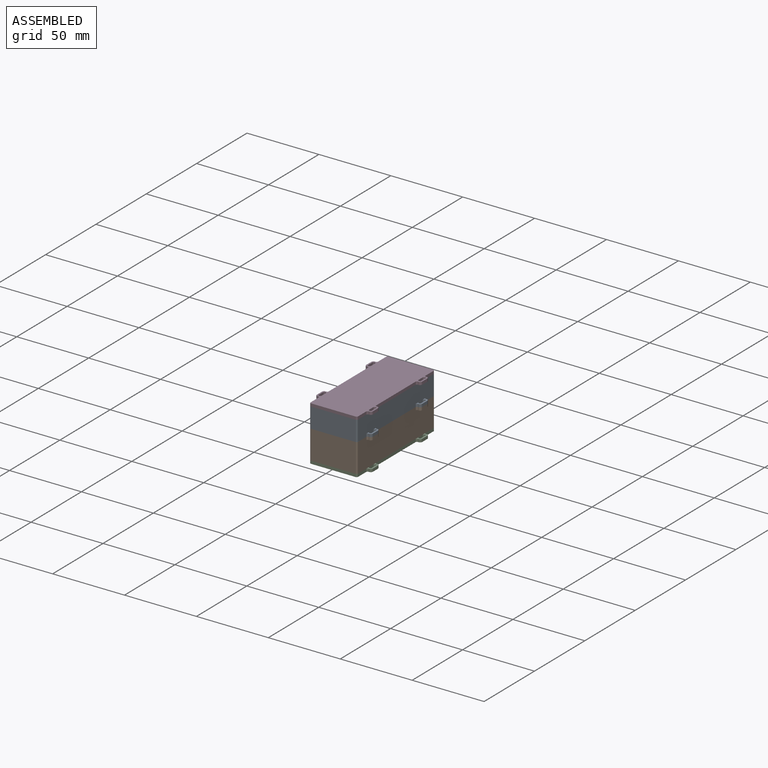
[diagram: assembled view]
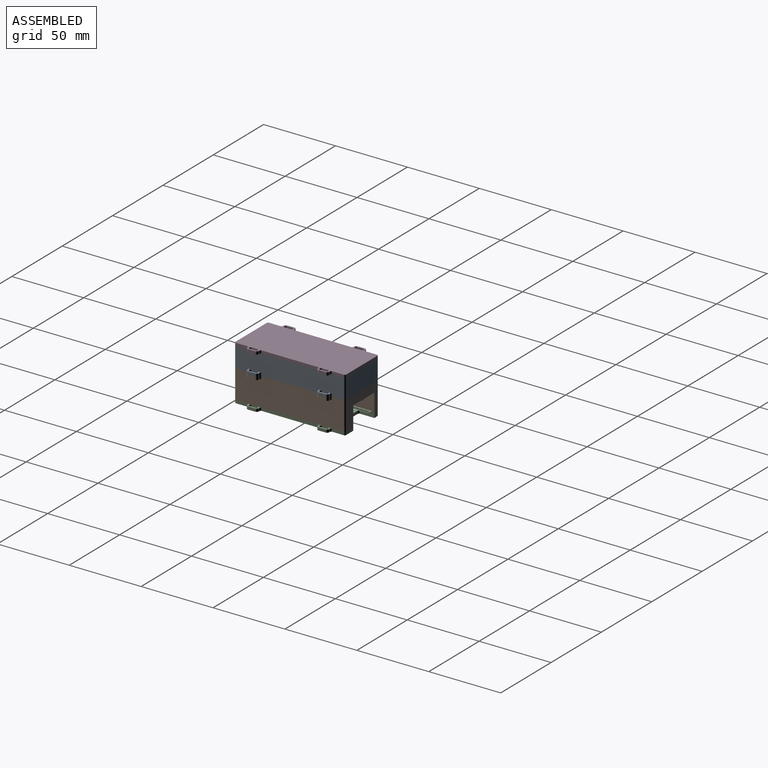
[diagram: assembled view, second angle]
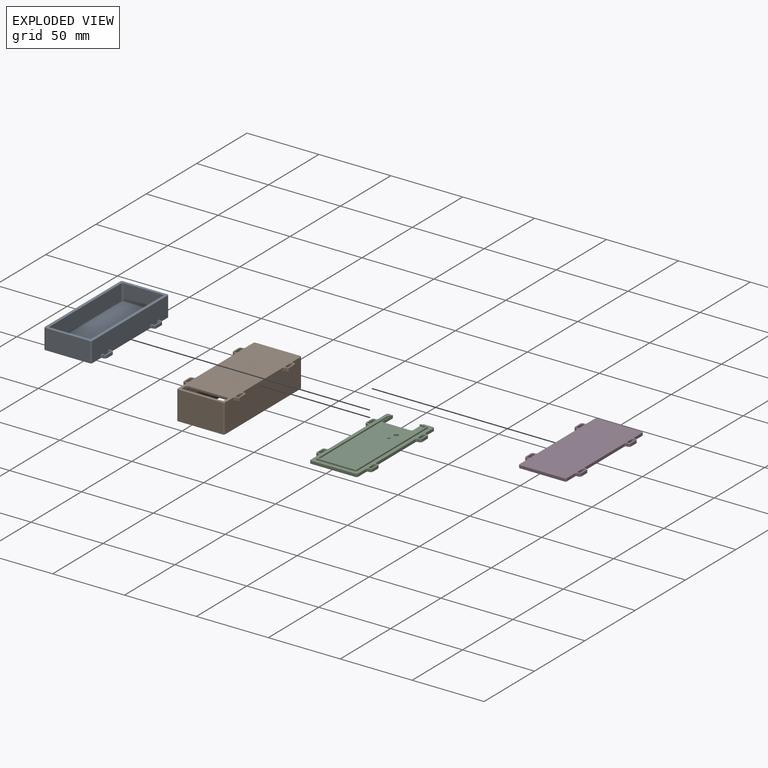
[diagram: exploded view]
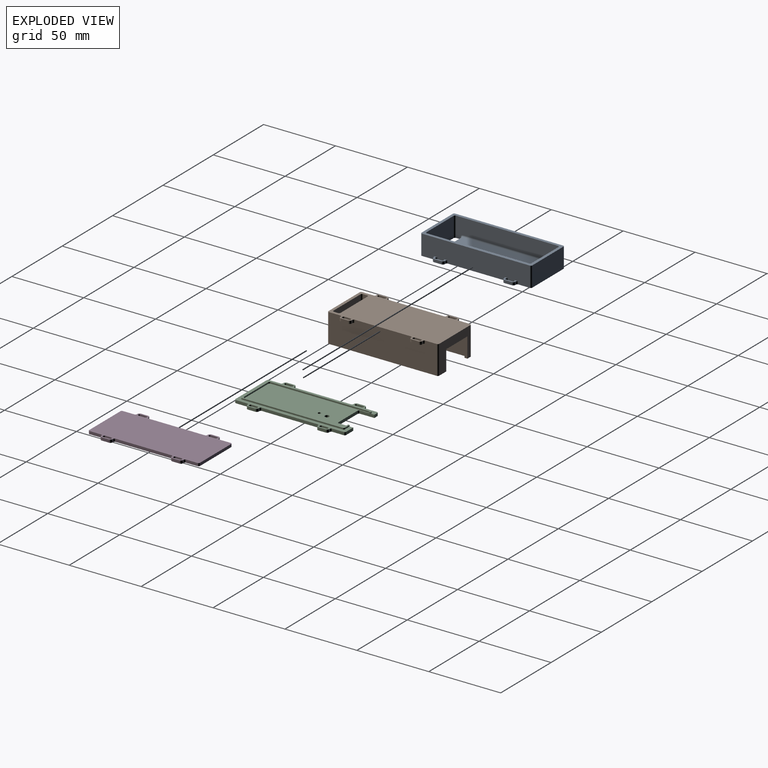
[diagram: exploded view, second angle]
ASSEMBLY  parts=4 mates=9
PART A: 90 faces, bbox 39x77x14 mm
  f0: plane 75x14mm, normal (1,0,0), area 1026mm2, adj f2,f5,f26,f29,f51,f73,f74,f75
  f1: plane 75x14mm, normal (-1,0,0), area 1026mm2, adj f2,f5,f27,f28,f34,f52,f78,f79
  f2: plane 77x33mm, normal (0,0,1), area 424mm2, adj f0,f1,f3,f4,f6,f7,f8,f9
  f3: plane 31x14mm, normal (0,1,0), area 434mm2, adj f2,f5,f26,f27
  f4: plane 31x14mm, normal (0,-1,0), area 434mm2, adj f2,f5,f28,f29
  f5: plane 77x39mm, normal (0,0,-1), area 2444mm2, adj f0,f1,f3,f4,f6,f7,f8,f11
  f6: plane 71x14mm, normal (-1,0,0), area 790.9mm2, adj f2,f5,f12,f13,f14,f22,f25
  f7: plane 27x14mm, normal (0,-1,0), area 378mm2, adj f2,f5,f24,f25
  f8: plane 71x14mm, normal (1,0,0), area 790.9mm2, adj f2,f5,f17,f18,f19,f20,f24
  f9: plane 27x11mm, normal (0,1,0), area 297mm2, adj f2,f15,f20,f22
  f10: plane 66x27mm, normal (0,0,1), area 1782mm2, adj f13,f15,f16,f17
  f11: plane 27x1mm, normal (0,1,0), area 27mm2, adj f5,f12,f16,f19
  f12: cylinder r=1mm len=1mm, axis (0,0,-1), area 1.6mm2, adj f5,f6,f11,f14
  f13: cylinder r=1mm len=66mm, axis (0,-1,0), area 103.7mm2, adj f6,f10,f14,f23
  f14: torus R=2mm, axis (1,0,0), area 3.4mm2, adj f6,f12,f13,f16
  f15: cylinder r=1mm len=27mm, axis (-1,0,0), area 42.4mm2, adj f9,f10,f21,f23
  f16: cylinder r=1mm len=27mm, axis (-1,0,0), area 42.4mm2, adj f10,f11,f14,f18
  f17: cylinder r=1mm len=66mm, axis (0,1,0), area 103.7mm2, adj f8,f10,f18,f21
  f18: torus R=2mm, axis (1,0,0), area 3.4mm2, adj f8,f16,f17,f19
  f19: cylinder r=1mm len=1mm, axis (0,0,1), area 1.6mm2, adj f5,f8,f11,f18
  f20: cylinder r=1mm len=11mm, axis (0,0,-1), area 17.3mm2, adj f2,f8,f9,f21
  f21: sphere r=1mm, area 1.6mm2, adj f15,f17,f20
  f22: cylinder r=1mm len=11mm, axis (0,0,1), area 17.3mm2, adj f2,f6,f9,f23
  f23: sphere r=1mm, area 1.6mm2, adj f13,f15,f22
  f24: cylinder r=1mm len=14mm, axis (0,0,1), area 22mm2, adj f2,f5,f7,f8
  f25: cylinder r=1mm len=14mm, axis (0,0,-1), area 22mm2, adj f2,f5,f6,f7
  f26: cylinder r=1mm len=14mm, axis (0,0,1), area 22mm2, adj f0,f2,f3,f5
  f27: cylinder r=1mm len=14mm, axis (0,0,-1), area 22mm2, adj f1,f2,f3,f5
  f28: cylinder r=1mm len=14mm, axis (0,0,1), area 22mm2, adj f1,f2,f4,f5
  f29: cylinder r=1mm len=14mm, axis (0,0,-1), area 22mm2, adj f0,f2,f4,f5
  f30: plane 2x0.5mm, normal (0,-1,0), area 1mm2, adj f5,f34,f35,f86
  f31: plane 2x0.5mm, normal (0,-1,0), area 1mm2, adj f5,f34,f38,f88
  f32: plane 2x0.5mm, normal (0,1,0), area 1mm2, adj f5,f34,f40,f87
  f33: plane 2x0.5mm, normal (0,1,0), area 1mm2, adj f5,f34,f37,f89
  f34: plane 10x3mm, normal (0,0,1), area 12mm2, adj f1,f30,f31,f32,f33,f35,f36,f37
  f35: cylinder r=1.5mm len=2mm, axis (0,0,-1), area 4.7mm2, adj f5,f30,f34,f36
  f36: plane 5x2mm, normal (-1,0,0), area 10mm2, adj f5,f34,f35,f37
  f37: cylinder r=1.5mm len=2mm, axis (0,0,-1), area 4.7mm2, adj f5,f33,f34,f36
  f38: cylinder r=0.5mm len=2mm, axis (0,0,-1), area 1.6mm2, adj f5,f31,f34,f39
  f39: plane 5x2mm, normal (1,0,0), area 10mm2, adj f5,f34,f38,f40
  f40: cylinder r=0.5mm len=2mm, axis (0,0,-1), area 1.6mm2, adj f5,f32,f34,f39
  f41: plane 2x0.5mm, normal (0,1,0), area 1mm2, adj f5,f42,f51,f84
  f42: cylinder r=1.5mm len=2mm, axis (0,0,-1), area 4.7mm2, adj f5,f41,f43,f51
  f43: plane 5x2mm, normal (1,0,0), area 10mm2, adj f5,f42,f44,f51
  f44: cylinder r=1.5mm len=2mm, axis (0,0,-1), area 4.7mm2, adj f5,f43,f50,f51
  f45: plane 2x0.5mm, normal (0,-1,0), area 1mm2, adj f5,f49,f51,f85
  f46: plane 2x0.5mm, normal (0,1,0), area 1mm2, adj f5,f47,f51,f82
  f47: cylinder r=0.5mm len=2mm, axis (0,0,-1), area 1.6mm2, adj f5,f46,f48,f51
  f48: plane 5x2mm, normal (-1,0,0), area 10mm2, adj f5,f47,f49,f51
  f49: cylinder r=0.5mm len=2mm, axis (0,0,-1), area 1.6mm2, adj f5,f45,f48,f51
  f50: plane 2x0.5mm, normal (0,-1,0), area 1mm2, adj f5,f44,f51,f83
  f51: plane 10x3mm, normal (0,0,1), area 12mm2, adj f0,f41,f42,f43,f44,f45,f46,f47
  f52: plane 10x3mm, normal (0,0,1), area 12mm2, adj f1,f53,f54,f55,f56,f57,f58,f59
  f53: plane 2x0.5mm, normal (0,1,0), area 1mm2, adj f5,f52,f62,f78
  f54: plane 2x0.5mm, normal (0,-1,0), area 1mm2, adj f5,f52,f57,f79
  f55: plane 2x0.5mm, normal (0,-1,0), area 1mm2, adj f5,f52,f59,f80
  f56: plane 2x0.5mm, normal (0,1,0), area 1mm2, adj f5,f52,f61,f81
  f57: cylinder r=1.5mm len=2mm, axis (0,0,-1), area 4.7mm2, adj f5,f52,f54,f58
  f58: plane 5x2mm, normal (-1,0,0), area 10mm2, adj f5,f52,f57,f62
  f59: cylinder r=0.5mm len=2mm, axis (0,0,-1), area 1.6mm2, adj f5,f52,f55,f60
  f60: plane 5x2mm, normal (1,0,0), area 10mm2, adj f5,f52,f59,f61
  f61: cylinder r=0.5mm len=2mm, axis (0,0,-1), area 1.6mm2, adj f5,f52,f56,f60
  f62: cylinder r=1.5mm len=2mm, axis (0,0,-1), area 4.7mm2, adj f5,f52,f53,f58
  f63: plane 2x0.5mm, normal (0,1,0), area 1mm2, adj f5,f64,f73,f74
  f64: cylinder r=1.5mm len=2mm, axis (0,0,-1), area 4.7mm2, adj f5,f63,f65,f73
  f65: plane 5x2mm, normal (1,0,0), area 10mm2, adj f5,f64,f66,f73
  f66: cylinder r=1.5mm len=2mm, axis (0,0,-1), area 4.7mm2, adj f5,f65,f67,f73
  f67: plane 2x0.5mm, normal (0,-1,0), area 1mm2, adj f5,f66,f73,f75
  f68: plane 2x0.5mm, normal (0,-1,0), area 1mm2, adj f5,f72,f73,f76
  f69: plane 2x0.5mm, normal (0,1,0), area 1mm2, adj f5,f70,f73,f77
  f70: cylinder r=0.5mm len=2mm, axis (0,0,-1), area 1.6mm2, adj f5,f69,f71,f73
  f71: plane 5x2mm, normal (-1,0,0), area 10mm2, adj f5,f70,f72,f73
  f72: cylinder r=0.5mm len=2mm, axis (0,0,-1), area 1.6mm2, adj f5,f68,f71,f73
  f73: plane 10x3mm, normal (0,0,1), area 12mm2, adj f0,f63,f64,f65,f66,f67,f68,f69
  f74: cylinder r=1mm len=2mm, axis (0,0,-1), area 3.1mm2, adj f0,f5,f63,f73
  f75: cylinder r=1mm len=2mm, axis (0,0,1), area 3.1mm2, adj f0,f5,f67,f73
  f76: cylinder r=1mm len=2mm, axis (0,0,1), area 3.1mm2, adj f0,f5,f68,f73
  f77: cylinder r=1mm len=2mm, axis (0,0,-1), area 3.1mm2, adj f0,f5,f69,f73
  f78: cylinder r=1mm len=2mm, axis (0,0,1), area 3.1mm2, adj f1,f5,f52,f53
  f79: cylinder r=1mm len=2mm, axis (0,0,-1), area 3.1mm2, adj f1,f5,f52,f54
  f80: cylinder r=1mm len=2mm, axis (0,0,-1), area 3.1mm2, adj f1,f5,f52,f55
  f81: cylinder r=1mm len=2mm, axis (0,0,1), area 3.1mm2, adj f1,f5,f52,f56
  f82: cylinder r=1mm len=2mm, axis (0,0,-1), area 3.1mm2, adj f0,f5,f46,f51
  f83: cylinder r=1mm len=2mm, axis (0,0,1), area 3.1mm2, adj f0,f5,f50,f51
  f84: cylinder r=1mm len=2mm, axis (0,0,-1), area 3.1mm2, adj f0,f5,f41,f51
  f85: cylinder r=1mm len=2mm, axis (0,0,1), area 3.1mm2, adj f0,f5,f45,f51
  f86: cylinder r=1mm len=2mm, axis (0,0,-1), area 3.1mm2, adj f1,f5,f30,f34
  f87: cylinder r=1mm len=2mm, axis (0,0,1), area 3.1mm2, adj f1,f5,f32,f34
  f88: cylinder r=1mm len=2mm, axis (0,0,-1), area 3.1mm2, adj f1,f5,f31,f34
  f89: cylinder r=1mm len=2mm, axis (0,0,1), area 3.1mm2, adj f1,f5,f33,f34
PART B: 93 faces, bbox 39x77x20 mm
  f0: plane 75x20mm, normal (1,0,0), area 1476mm2, adj f3,f4,f36,f58,f73,f76,f77,f78
  f1: plane 75x20mm, normal (-1,0,0), area 1476mm2, adj f3,f4,f19,f37,f74,f75,f81,f82
  f2: plane 66x27mm, normal (0,0,1), area 1782mm2, adj f62,f63,f67,f68
  f3: plane 77x39mm, normal (0,0,-1), area 2444mm2, adj f0,f1,f5,f6,f7,f8,f9,f14
  f4: plane 77x33mm, normal (0,0,1), area 382mm2, adj f0,f1,f5,f6,f7,f8,f9,f10
  f5: plane 31x20mm, normal (0,1,0), area 620mm2, adj f3,f4,f73,f74
  f6: plane 31x20mm, normal (0,-1,0), area 326mm2, adj f3,f4,f11,f12,f13,f75,f76
  f7: plane 71x20mm, normal (-1,0,0), area 1216.9mm2, adj f3,f4,f61,f67,f69,f70,f72
  f8: plane 27x20mm, normal (0,-1,0), area 540mm2, adj f3,f4,f71,f72
  f9: plane 71x20mm, normal (1,0,0), area 1216.9mm2, adj f3,f4,f59,f63,f64,f66,f71
  f10: plane 27x17mm, normal (0,1,0), area 165mm2, adj f4,f11,f12,f13,f59,f61,f62
  f11: plane 14x2mm, normal (1,0,0), area 28mm2, adj f4,f6,f10,f12
  f12: plane 21x2mm, normal (0,0,1), area 42mm2, adj f6,f10,f11,f13
  f13: plane 14x2mm, normal (-1,0,0), area 28mm2, adj f4,f6,f10,f12
  f14: plane 27x1mm, normal (0,1,0), area 27mm2, adj f3,f64,f68,f70
  f15: plane 2x0.5mm, normal (0,-1,0), area 1mm2, adj f3,f19,f20,f89
  f16: plane 2x0.5mm, normal (0,-1,0), area 1mm2, adj f3,f19,f23,f91
  f17: plane 2x0.5mm, normal (0,1,0), area 1mm2, adj f3,f19,f25,f90
  f18: plane 2x0.5mm, normal (0,1,0), area 1mm2, adj f3,f19,f22,f92
  f19: plane 10x3mm, normal (0,0,1), area 12mm2, adj f1,f15,f16,f17,f18,f20,f21,f22
  f20: cylinder r=1.5mm len=2mm, axis (0,0,-1), area 4.7mm2, adj f3,f15,f19,f21
  f21: plane 5x2mm, normal (-1,0,0), area 10mm2, adj f3,f19,f20,f22
  f22: cylinder r=1.5mm len=2mm, axis (0,0,-1), area 4.7mm2, adj f3,f18,f19,f21
  f23: cylinder r=0.5mm len=2mm, axis (0,0,-1), area 1.6mm2, adj f3,f16,f19,f24
  f24: plane 5x2mm, normal (1,0,0), area 10mm2, adj f3,f19,f23,f25
  f25: cylinder r=0.5mm len=2mm, axis (0,0,-1), area 1.6mm2, adj f3,f17,f19,f24
  f26: plane 2x0.5mm, normal (0,1,0), area 1mm2, adj f3,f27,f36,f87
  f27: cylinder r=1.5mm len=2mm, axis (0,0,-1), area 4.7mm2, adj f3,f26,f28,f36
  f28: plane 5x2mm, normal (1,0,0), area 10mm2, adj f3,f27,f29,f36
  f29: cylinder r=1.5mm len=2mm, axis (0,0,-1), area 4.7mm2, adj f3,f28,f35,f36
  f30: plane 2x0.5mm, normal (0,-1,0), area 1mm2, adj f3,f34,f36,f88
  f31: plane 2x0.5mm, normal (0,1,0), area 1mm2, adj f3,f32,f36,f85
  f32: cylinder r=0.5mm len=2mm, axis (0,0,-1), area 1.6mm2, adj f3,f31,f33,f36
  f33: plane 5x2mm, normal (-1,0,0), area 10mm2, adj f3,f32,f34,f36
  f34: cylinder r=0.5mm len=2mm, axis (0,0,-1), area 1.6mm2, adj f3,f30,f33,f36
  f35: plane 2x0.5mm, normal (0,-1,0), area 1mm2, adj f3,f29,f36,f86
  f36: plane 10x3mm, normal (0,0,1), area 12mm2, adj f0,f26,f27,f28,f29,f30,f31,f32
  f37: plane 10x3mm, normal (0,0,1), area 12mm2, adj f1,f38,f39,f40,f41,f42,f43,f44
  f38: plane 2x0.5mm, normal (0,1,0), area 1mm2, adj f3,f37,f47,f81
  f39: plane 2x0.5mm, normal (0,-1,0), area 1mm2, adj f3,f37,f42,f82
  f40: plane 2x0.5mm, normal (0,-1,0), area 1mm2, adj f3,f37,f44,f83
  f41: plane 2x0.5mm, normal (0,1,0), area 1mm2, adj f3,f37,f46,f84
  f42: cylinder r=0.5mm len=2mm, axis (0,0,-1), area 1.6mm2, adj f3,f37,f39,f43
  f43: plane 5x2mm, normal (1,0,0), area 10mm2, adj f3,f37,f42,f47
  f44: cylinder r=1.5mm len=2mm, axis (0,0,-1), area 4.7mm2, adj f3,f37,f40,f45
  f45: plane 5x2mm, normal (-1,0,0), area 10mm2, adj f3,f37,f44,f46
  f46: cylinder r=1.5mm len=2mm, axis (0,0,-1), area 4.7mm2, adj f3,f37,f41,f45
  f47: cylinder r=0.5mm len=2mm, axis (0,0,-1), area 1.6mm2, adj f3,f37,f38,f43
  f48: plane 2x0.5mm, normal (0,1,0), area 1mm2, adj f3,f49,f58,f77
  f49: cylinder r=1.5mm len=2mm, axis (0,0,-1), area 4.7mm2, adj f3,f48,f50,f58
  f50: plane 5x2mm, normal (1,0,0), area 10mm2, adj f3,f49,f51,f58
  f51: cylinder r=1.5mm len=2mm, axis (0,0,-1), area 4.7mm2, adj f3,f50,f52,f58
  f52: plane 2x0.5mm, normal (0,-1,0), area 1mm2, adj f3,f51,f58,f78
  f53: plane 2x0.5mm, normal (0,-1,0), area 1mm2, adj f3,f57,f58,f79
  f54: plane 2x0.5mm, normal (0,1,0), area 1mm2, adj f3,f55,f58,f80
  f55: cylinder r=0.5mm len=2mm, axis (0,0,-1), area 1.6mm2, adj f3,f54,f56,f58
  f56: plane 5x2mm, normal (-1,0,0), area 10mm2, adj f3,f55,f57,f58
  f57: cylinder r=0.5mm len=2mm, axis (0,0,-1), area 1.6mm2, adj f3,f53,f56,f58
  f58: plane 10x3mm, normal (0,0,1), area 12mm2, adj f0,f48,f49,f50,f51,f52,f53,f54
  f59: cylinder r=1mm len=17mm, axis (0,0,-1), area 26.7mm2, adj f4,f9,f10,f60
  f60: sphere r=1mm, area 1.6mm2, adj f59,f62,f63
  f61: cylinder r=1mm len=17mm, axis (0,0,1), area 26.7mm2, adj f4,f7,f10,f65
  f62: cylinder r=1mm len=27mm, axis (-1,0,0), area 42.4mm2, adj f2,f10,f60,f65
  f63: cylinder r=1mm len=66mm, axis (0,1,0), area 103.7mm2, adj f2,f9,f60,f66
  f64: cylinder r=1mm len=1mm, axis (0,0,-1), area 1.6mm2, adj f3,f9,f14,f66
  f65: sphere r=1mm, area 1.6mm2, adj f61,f62,f67
  f66: torus R=2mm, axis (1,0,0), area 3.4mm2, adj f9,f63,f64,f68
  f67: cylinder r=1mm len=66mm, axis (0,-1,0), area 103.7mm2, adj f2,f7,f65,f69
  f68: cylinder r=1mm len=27mm, axis (-1,0,0), area 42.4mm2, adj f2,f14,f66,f69
  f69: torus R=2mm, axis (1,0,0), area 3.4mm2, adj f7,f67,f68,f70
  f70: cylinder r=1mm len=1mm, axis (0,0,1), area 1.6mm2, adj f3,f7,f14,f69
  f71: cylinder r=1mm len=20mm, axis (0,0,1), area 31.4mm2, adj f3,f4,f8,f9
  f72: cylinder r=1mm len=20mm, axis (0,0,-1), area 31.4mm2, adj f3,f4,f7,f8
  f73: cylinder r=1mm len=20mm, axis (0,0,1), area 31.4mm2, adj f0,f3,f4,f5
  f74: cylinder r=1mm len=20mm, axis (0,0,-1), area 31.4mm2, adj f1,f3,f4,f5
  f75: cylinder r=1mm len=20mm, axis (0,0,1), area 31.4mm2, adj f1,f3,f4,f6
  f76: cylinder r=1mm len=20mm, axis (0,0,-1), area 31.4mm2, adj f0,f3,f4,f6
  f77: cylinder r=1mm len=2mm, axis (0,0,-1), area 3.1mm2, adj f0,f3,f48,f58
  f78: cylinder r=1mm len=2mm, axis (0,0,1), area 3.1mm2, adj f0,f3,f52,f58
  f79: cylinder r=1mm len=2mm, axis (0,0,1), area 3.1mm2, adj f0,f3,f53,f58
  f80: cylinder r=1mm len=2mm, axis (0,0,-1), area 3.1mm2, adj f0,f3,f54,f58
  f81: cylinder r=1mm len=2mm, axis (0,0,1), area 3.1mm2, adj f1,f3,f37,f38
  f82: cylinder r=1mm len=2mm, axis (0,0,-1), area 3.1mm2, adj f1,f3,f37,f39
  f83: cylinder r=1mm len=2mm, axis (0,0,-1), area 3.1mm2, adj f1,f3,f37,f40
  f84: cylinder r=1mm len=2mm, axis (0,0,1), area 3.1mm2, adj f1,f3,f37,f41
  f85: cylinder r=1mm len=2mm, axis (0,0,-1), area 3.1mm2, adj f0,f3,f31,f36
  f86: cylinder r=1mm len=2mm, axis (0,0,1), area 3.1mm2, adj f0,f3,f35,f36
  f87: cylinder r=1mm len=2mm, axis (0,0,-1), area 3.1mm2, adj f0,f3,f26,f36
  f88: cylinder r=1mm len=2mm, axis (0,0,1), area 3.1mm2, adj f0,f3,f30,f36
  f89: cylinder r=1mm len=2mm, axis (0,0,-1), area 3.1mm2, adj f1,f3,f15,f19
  f90: cylinder r=1mm len=2mm, axis (0,0,1), area 3.1mm2, adj f1,f3,f17,f19
  f91: cylinder r=1mm len=2mm, axis (0,0,-1), area 3.1mm2, adj f1,f3,f16,f19
  f92: cylinder r=1mm len=2mm, axis (0,0,1), area 3.1mm2, adj f1,f3,f18,f19
PART C: 101 faces, bbox 39x77x3 mm
  f0: plane 77x39mm, normal (0,0,-1), area 520.5mm2, adj f1,f3,f7,f8,f9,f10,f11,f12
  f1: plane 7x2mm, normal (0,-1,0), area 14mm2, adj f0,f2,f34,f97
  f2: plane 77x39mm, normal (0,0,1), area 2347.4mm2, adj f1,f7,f8,f9,f10,f11,f12,f13
  f3: plane 4.5x1mm, normal (0,-1,0), area 4.5mm2, adj f0,f5,f33,f97
  f4: plane 3.5x1mm, normal (0,1,0), area 3.5mm2, adj f5,f6,f26,f97
  f5: plane 72x28mm, normal (0,0,-1), area 175mm2, adj f3,f4,f19,f20,f21,f22,f23,f24
  f6: plane 70x26mm, normal (0,0,-1), area 1651.9mm2, adj f4,f26,f27,f28,f29,f30,f31,f32
  f7: plane 4x2mm, normal (1,0,0), area 8mm2, adj f0,f2,f78,f79
  f8: plane 8x2mm, normal (1,0,0), area 16mm2, adj f0,f2,f34,f81
  f9: plane 39x2mm, normal (-1,0,0), area 78mm2, adj f0,f2,f83,f93
  f10: plane 4x2mm, normal (-1,0,0), area 8mm2, adj f0,f2,f84,f85
  f11: plane 39x2mm, normal (1,0,0), area 78mm2, adj f0,f2,f80,f86
  f12: plane 4x2mm, normal (1,0,0), area 8mm2, adj f0,f2,f87,f88
  f13: plane 8x2mm, normal (-1,0,0), area 16mm2, adj f0,f2,f36,f90
  f14: plane 4x2mm, normal (-1,0,0), area 8mm2, adj f0,f2,f91,f92
  f15: plane 3x2mm, normal (0,-1,0), area 6mm2, adj f0,f2,f37,f98
  f16: plane 8x2mm, normal (1,0,0), area 16mm2, adj f0,f2,f35,f89
  f17: plane 31x2mm, normal (0,1,0), area 62mm2, adj f0,f2,f35,f36
  f18: plane 8x2mm, normal (-1,0,0), area 16mm2, adj f0,f2,f37,f82
  f19: plane 70x1mm, normal (1,0,0), area 70mm2, adj f0,f5,f20,f33
  f20: cylinder r=1mm len=1mm, axis (0,0,1), area 1.6mm2, adj f0,f5,f19,f21
  f21: plane 26x1mm, normal (0,1,0), area 26mm2, adj f0,f5,f20,f22
  f22: cylinder r=1mm len=1mm, axis (0,0,1), area 1.6mm2, adj f0,f5,f21,f23
  f23: plane 70x1mm, normal (-1,0,0), area 70mm2, adj f0,f5,f22,f24
  f24: cylinder r=1mm len=1mm, axis (0,0,1), area 1.6mm2, adj f0,f5,f23,f25
  f25: plane 1x0.5mm, normal (0,-1,0), area 0.5mm2, adj f0,f5,f24,f98
  f26: cylinder r=1mm len=1mm, axis (0,0,1), area 1.6mm2, adj f4,f5,f6,f32
  f27: cylinder r=1mm len=1mm, axis (0,0,1), area 1mm2, adj f5,f6,f28,f98
  f28: plane 68x1mm, normal (1,0,0), area 68mm2, adj f5,f6,f27,f29
  f29: cylinder r=1mm len=1mm, axis (0,0,1), area 1.6mm2, adj f5,f6,f28,f30
  f30: plane 24x1mm, normal (0,-1,0), area 24mm2, adj f5,f6,f29,f31
  f31: cylinder r=1mm len=1mm, axis (0,0,1), area 1.6mm2, adj f5,f6,f30,f32
  f32: plane 68x1mm, normal (-1,0,0), area 68mm2, adj f5,f6,f26,f31
  f33: cylinder r=1mm len=1mm, axis (0,0,1), area 1.6mm2, adj f0,f3,f5,f19
  f34: cylinder r=1mm len=2mm, axis (0,0,1), area 3.1mm2, adj f0,f1,f2,f8
  f35: cylinder r=1mm len=2mm, axis (0,0,-1), area 3.1mm2, adj f0,f2,f16,f17
  f36: cylinder r=1mm len=2mm, axis (0,0,1), area 3.1mm2, adj f0,f2,f13,f17
  f37: cylinder r=1mm len=2mm, axis (0,0,-1), area 3.1mm2, adj f0,f2,f15,f18
  f38: plane 2x0.5mm, normal (0,1,0), area 1mm2, adj f0,f2,f39,f90
  f39: cylinder r=1.5mm len=2mm, axis (0,0,1), area 4.7mm2, adj f0,f2,f38,f40
  f40: plane 5x2mm, normal (-1,0,0), area 10mm2, adj f0,f2,f39,f41
  f41: cylinder r=1.5mm len=2mm, axis (0,0,1), area 4.7mm2, adj f0,f2,f40,f47
  f42: plane 2x0.5mm, normal (0,1,0), area 1mm2, adj f0,f2,f43,f91
  f43: cylinder r=0.5mm len=2mm, axis (0,0,1), area 1.6mm2, adj f0,f2,f42,f44
  f44: plane 5x2mm, normal (1,0,0), area 10mm2, adj f0,f2,f43,f45
  f45: cylinder r=0.5mm len=2mm, axis (0,0,1), area 1.6mm2, adj f0,f2,f44,f46
  f46: plane 2x0.5mm, normal (0,-1,0), area 1mm2, adj f0,f2,f45,f92
  f47: plane 2x0.5mm, normal (0,-1,0), area 1mm2, adj f0,f2,f41,f93
  f48: plane 2x0.5mm, normal (0,-1,0), area 1mm2, adj f0,f2,f52,f86
  f49: plane 2x0.5mm, normal (0,1,0), area 1mm2, adj f0,f2,f57,f87
  f50: plane 2x0.5mm, normal (0,-1,0), area 1mm2, adj f0,f2,f55,f88
  f51: plane 2x0.5mm, normal (0,1,0), area 1mm2, adj f0,f2,f54,f89
  f52: cylinder r=1.5mm len=2mm, axis (0,0,1), area 4.7mm2, adj f0,f2,f48,f53
  f53: plane 5x2mm, normal (1,0,0), area 10mm2, adj f0,f2,f52,f54
  f54: cylinder r=1.5mm len=2mm, axis (0,0,1), area 4.7mm2, adj f0,f2,f51,f53
  f55: cylinder r=0.5mm len=2mm, axis (0,0,1), area 1.6mm2, adj f0,f2,f50,f56
  f56: plane 5x2mm, normal (-1,0,0), area 10mm2, adj f0,f2,f55,f57
  f57: cylinder r=0.5mm len=2mm, axis (0,0,1), area 1.6mm2, adj f0,f2,f49,f56
  f58: plane 2x0.5mm, normal (0,-1,0), area 1mm2, adj f0,f2,f67,f82
  f59: plane 2x0.5mm, normal (0,1,0), area 1mm2, adj f0,f2,f60,f83
  f60: cylinder r=1.5mm len=2mm, axis (0,0,1), area 4.7mm2, adj f0,f2,f59,f61
  f61: plane 5x2mm, normal (-1,0,0), area 10mm2, adj f0,f2,f60,f67
  f62: plane 2x0.5mm, normal (0,1,0), area 1mm2, adj f0,f2,f63,f84
  f63: cylinder r=0.5mm len=2mm, axis (0,0,1), area 1.6mm2, adj f0,f2,f62,f64
  f64: plane 5x2mm, normal (1,0,0), area 10mm2, adj f0,f2,f63,f65
  f65: cylinder r=0.5mm len=2mm, axis (0,0,1), area 1.6mm2, adj f0,f2,f64,f66
  f66: plane 2x0.5mm, normal (0,-1,0), area 1mm2, adj f0,f2,f65,f85
  f67: cylinder r=1.5mm len=2mm, axis (0,0,1), area 4.7mm2, adj f0,f2,f58,f61
  f68: plane 2x0.5mm, normal (0,-1,0), area 1mm2, adj f0,f2,f72,f78
  f69: plane 2x0.5mm, normal (0,1,0), area 1mm2, adj f0,f2,f74,f79
  f70: plane 2x0.5mm, normal (0,1,0), area 1mm2, adj f0,f2,f77,f80
  f71: plane 2x0.5mm, normal (0,-1,0), area 1mm2, adj f0,f2,f75,f81
  f72: cylinder r=0.5mm len=2mm, axis (0,0,1), area 1.6mm2, adj f0,f2,f68,f73
  f73: plane 5x2mm, normal (-1,0,0), area 10mm2, adj f0,f2,f72,f74
  f74: cylinder r=0.5mm len=2mm, axis (0,0,1), area 1.6mm2, adj f0,f2,f69,f73
  f75: cylinder r=1.5mm len=2mm, axis (0,0,1), area 4.7mm2, adj f0,f2,f71,f76
  f76: plane 5x2mm, normal (1,0,0), area 10mm2, adj f0,f2,f75,f77
  f77: cylinder r=1.5mm len=2mm, axis (0,0,1), area 4.7mm2, adj f0,f2,f70,f76
  f78: cylinder r=1mm len=2mm, axis (0,0,1), area 3.1mm2, adj f0,f2,f7,f68
  f79: cylinder r=1mm len=2mm, axis (0,0,-1), area 3.1mm2, adj f0,f2,f7,f69
  f80: cylinder r=1mm len=2mm, axis (0,0,-1), area 3.1mm2, adj f0,f2,f11,f70
  f81: cylinder r=1mm len=2mm, axis (0,0,1), area 3.1mm2, adj f0,f2,f8,f71
  f82: cylinder r=1mm len=2mm, axis (0,0,-1), area 3.1mm2, adj f0,f2,f18,f58
  f83: cylinder r=1mm len=2mm, axis (0,0,1), area 3.1mm2, adj f0,f2,f9,f59
  f84: cylinder r=1mm len=2mm, axis (0,0,1), area 3.1mm2, adj f0,f2,f10,f62
  f85: cylinder r=1mm len=2mm, axis (0,0,-1), area 3.1mm2, adj f0,f2,f10,f66
  f86: cylinder r=1mm len=2mm, axis (0,0,1), area 3.1mm2, adj f0,f2,f11,f48
  f87: cylinder r=1mm len=2mm, axis (0,0,-1), area 3.1mm2, adj f0,f2,f12,f49
  f88: cylinder r=1mm len=2mm, axis (0,0,1), area 3.1mm2, adj f0,f2,f12,f50
  f89: cylinder r=1mm len=2mm, axis (0,0,-1), area 3.1mm2, adj f0,f2,f16,f51
  f90: cylinder r=1mm len=2mm, axis (0,0,1), area 3.1mm2, adj f0,f2,f13,f38
  f91: cylinder r=1mm len=2mm, axis (0,0,1), area 3.1mm2, adj f0,f2,f14,f42
  f92: cylinder r=1mm len=2mm, axis (0,0,-1), area 3.1mm2, adj f0,f2,f14,f46
  f93: cylinder r=1mm len=2mm, axis (0,0,-1), area 3.1mm2, adj f0,f2,f9,f47
  f94: cylinder r=1mm len=2mm, axis (0,0,1), area 3.1mm2, adj f2,f6,f95,f97
  f95: plane 19x2mm, normal (0,-1,0), area 38mm2, adj f2,f6,f94,f96
  f96: cylinder r=1mm len=2mm, axis (0,0,1), area 3.1mm2, adj f2,f6,f95,f98
  f97: plane 10x3mm, normal (-1,0,0), area 21mm2, adj f0,f1,f2,f3,f4,f5,f6,f94
  f98: plane 10x3mm, normal (1,0,0), area 21.1mm2, adj f0,f2,f5,f6,f15,f25,f27,f96
  f99: cylinder r=1mm len=2mm, axis (0,0,1), area 12.6mm2, adj f2,f6
  f100: cylinder r=1.5mm len=3mm, axis (0,0,1), area 18.8mm2, adj f2,f6
PART D: 92 faces, bbox 39x77x3 mm
  f0: plane 4x2mm, normal (1,0,0), area 8mm2, adj f8,f13,f76,f77
  f1: plane 8x2mm, normal (1,0,0), area 16mm2, adj f8,f13,f32,f79
  f2: plane 39x2mm, normal (-1,0,0), area 78mm2, adj f8,f13,f81,f91
  f3: plane 4x2mm, normal (-1,0,0), area 8mm2, adj f8,f13,f82,f83
  f4: plane 39x2mm, normal (1,0,0), area 78mm2, adj f8,f13,f78,f84
  f5: plane 4x2mm, normal (1,0,0), area 8mm2, adj f8,f13,f85,f86
  f6: plane 8x2mm, normal (-1,0,0), area 16mm2, adj f8,f13,f34,f88
  f7: plane 4x2mm, normal (-1,0,0), area 8mm2, adj f8,f13,f89,f90
  f8: plane 77x39mm, normal (0,0,-1), area 573mm2, adj f0,f1,f2,f3,f4,f5,f6,f7
  f9: plane 31x2mm, normal (0,-1,0), area 62mm2, adj f8,f13,f32,f35
  f10: plane 8x2mm, normal (1,0,0), area 16mm2, adj f8,f13,f33,f87
  f11: plane 31x2mm, normal (0,1,0), area 62mm2, adj f8,f13,f33,f34
  f12: plane 8x2mm, normal (-1,0,0), area 16mm2, adj f8,f13,f35,f80
  f13: plane 77x39mm, normal (0,0,1), area 2588.1mm2, adj f0,f1,f2,f3,f4,f5,f6,f7
  f14: plane 70x1mm, normal (1,0,0), area 70mm2, adj f8,f15,f29,f30
  f15: cylinder r=1mm len=1mm, axis (0,0,1), area 1.6mm2, adj f8,f14,f16,f30
  f16: plane 26x1mm, normal (0,1,0), area 26mm2, adj f8,f15,f17,f30
  f17: cylinder r=1mm len=1mm, axis (0,0,1), area 1.6mm2, adj f8,f16,f18,f30
  f18: plane 70x1mm, normal (-1,0,0), area 70mm2, adj f8,f17,f19,f30
  f19: cylinder r=1mm len=1mm, axis (0,0,1), area 1.6mm2, adj f8,f18,f20,f30
  f20: plane 26x1mm, normal (0,-1,0), area 26mm2, adj f8,f19,f29,f30
  f21: cylinder r=1mm len=1mm, axis (0,0,1), area 1.6mm2, adj f22,f28,f30,f31
  f22: plane 24x1mm, normal (0,1,0), area 24mm2, adj f21,f23,f30,f31
  f23: cylinder r=1mm len=1mm, axis (0,0,1), area 1.6mm2, adj f22,f24,f30,f31
  f24: plane 68x1mm, normal (1,0,0), area 68mm2, adj f23,f25,f30,f31
  f25: cylinder r=1mm len=1mm, axis (0,0,1), area 1.6mm2, adj f24,f26,f30,f31
  f26: plane 24x1mm, normal (0,-1,0), area 24mm2, adj f25,f27,f30,f31
  f27: cylinder r=1mm len=1mm, axis (0,0,1), area 1.6mm2, adj f26,f28,f30,f31
  f28: plane 68x1mm, normal (-1,0,0), area 68mm2, adj f21,f27,f30,f31
  f29: cylinder r=1mm len=1mm, axis (0,0,1), area 1.6mm2, adj f8,f14,f20,f30
  f30: plane 72x28mm, normal (0,0,-1), area 196mm2, adj f14,f15,f16,f17,f18,f19,f20,f21
  f31: plane 70x26mm, normal (0,0,-1), area 1819.1mm2, adj f21,f22,f23,f24,f25,f26,f27,f28
  f32: cylinder r=1mm len=2mm, axis (0,0,1), area 3.1mm2, adj f1,f8,f9,f13
  f33: cylinder r=1mm len=2mm, axis (0,0,-1), area 3.1mm2, adj f8,f10,f11,f13
  f34: cylinder r=1mm len=2mm, axis (0,0,1), area 3.1mm2, adj f6,f8,f11,f13
  f35: cylinder r=1mm len=2mm, axis (0,0,-1), area 3.1mm2, adj f8,f9,f12,f13
  f36: plane 2x0.5mm, normal (0,1,0), area 1mm2, adj f8,f13,f37,f88
  f37: cylinder r=1.5mm len=2mm, axis (0,0,1), area 4.7mm2, adj f8,f13,f36,f38
  f38: plane 5x2mm, normal (-1,0,0), area 10mm2, adj f8,f13,f37,f39
  f39: cylinder r=1.5mm len=2mm, axis (0,0,1), area 4.7mm2, adj f8,f13,f38,f45
  f40: plane 2x0.5mm, normal (0,1,0), area 1mm2, adj f8,f13,f41,f89
  f41: cylinder r=0.5mm len=2mm, axis (0,0,1), area 1.6mm2, adj f8,f13,f40,f42
  f42: plane 5x2mm, normal (1,0,0), area 10mm2, adj f8,f13,f41,f43
  f43: cylinder r=0.5mm len=2mm, axis (0,0,1), area 1.6mm2, adj f8,f13,f42,f44
  f44: plane 2x0.5mm, normal (0,-1,0), area 1mm2, adj f8,f13,f43,f90
  f45: plane 2x0.5mm, normal (0,-1,0), area 1mm2, adj f8,f13,f39,f91
  f46: plane 2x0.5mm, normal (0,-1,0), area 1mm2, adj f8,f13,f50,f84
  f47: plane 2x0.5mm, normal (0,1,0), area 1mm2, adj f8,f13,f55,f85
  f48: plane 2x0.5mm, normal (0,-1,0), area 1mm2, adj f8,f13,f53,f86
  f49: plane 2x0.5mm, normal (0,1,0), area 1mm2, adj f8,f13,f52,f87
  f50: cylinder r=1.5mm len=2mm, axis (0,0,1), area 4.7mm2, adj f8,f13,f46,f51
  f51: plane 5x2mm, normal (1,0,0), area 10mm2, adj f8,f13,f50,f52
  f52: cylinder r=1.5mm len=2mm, axis (0,0,1), area 4.7mm2, adj f8,f13,f49,f51
  f53: cylinder r=0.5mm len=2mm, axis (0,0,1), area 1.6mm2, adj f8,f13,f48,f54
  f54: plane 5x2mm, normal (-1,0,0), area 10mm2, adj f8,f13,f53,f55
  f55: cylinder r=0.5mm len=2mm, axis (0,0,1), area 1.6mm2, adj f8,f13,f47,f54
  f56: plane 2x0.5mm, normal (0,-1,0), area 1mm2, adj f8,f13,f65,f80
  f57: plane 2x0.5mm, normal (0,1,0), area 1mm2, adj f8,f13,f58,f81
  f58: cylinder r=1.5mm len=2mm, axis (0,0,1), area 4.7mm2, adj f8,f13,f57,f59
  f59: plane 5x2mm, normal (-1,0,0), area 10mm2, adj f8,f13,f58,f65
  f60: plane 2x0.5mm, normal (0,1,0), area 1mm2, adj f8,f13,f61,f82
  f61: cylinder r=0.5mm len=2mm, axis (0,0,1), area 1.6mm2, adj f8,f13,f60,f62
  f62: plane 5x2mm, normal (1,0,0), area 10mm2, adj f8,f13,f61,f63
  f63: cylinder r=0.5mm len=2mm, axis (0,0,1), area 1.6mm2, adj f8,f13,f62,f64
  f64: plane 2x0.5mm, normal (0,-1,0), area 1mm2, adj f8,f13,f63,f83
  f65: cylinder r=1.5mm len=2mm, axis (0,0,1), area 4.7mm2, adj f8,f13,f56,f59
  f66: plane 2x0.5mm, normal (0,-1,0), area 1mm2, adj f8,f13,f70,f76
  f67: plane 2x0.5mm, normal (0,1,0), area 1mm2, adj f8,f13,f72,f77
  f68: plane 2x0.5mm, normal (0,1,0), area 1mm2, adj f8,f13,f75,f78
  f69: plane 2x0.5mm, normal (0,-1,0), area 1mm2, adj f8,f13,f73,f79
  f70: cylinder r=0.5mm len=2mm, axis (0,0,1), area 1.6mm2, adj f8,f13,f66,f71
  f71: plane 5x2mm, normal (-1,0,0), area 10mm2, adj f8,f13,f70,f72
  f72: cylinder r=0.5mm len=2mm, axis (0,0,1), area 1.6mm2, adj f8,f13,f67,f71
  f73: cylinder r=1.5mm len=2mm, axis (0,0,1), area 4.7mm2, adj f8,f13,f69,f74
  f74: plane 5x2mm, normal (1,0,0), area 10mm2, adj f8,f13,f73,f75
  f75: cylinder r=1.5mm len=2mm, axis (0,0,1), area 4.7mm2, adj f8,f13,f68,f74
  f76: cylinder r=1mm len=2mm, axis (0,0,1), area 3.1mm2, adj f0,f8,f13,f66
  f77: cylinder r=1mm len=2mm, axis (0,0,-1), area 3.1mm2, adj f0,f8,f13,f67
  f78: cylinder r=1mm len=2mm, axis (0,0,-1), area 3.1mm2, adj f4,f8,f13,f68
  f79: cylinder r=1mm len=2mm, axis (0,0,1), area 3.1mm2, adj f1,f8,f13,f69
  f80: cylinder r=1mm len=2mm, axis (0,0,-1), area 3.1mm2, adj f8,f12,f13,f56
  f81: cylinder r=1mm len=2mm, axis (0,0,1), area 3.1mm2, adj f2,f8,f13,f57
  f82: cylinder r=1mm len=2mm, axis (0,0,1), area 3.1mm2, adj f3,f8,f13,f60
  f83: cylinder r=1mm len=2mm, axis (0,0,-1), area 3.1mm2, adj f3,f8,f13,f64
  f84: cylinder r=1mm len=2mm, axis (0,0,1), area 3.1mm2, adj f4,f8,f13,f46
  f85: cylinder r=1mm len=2mm, axis (0,0,-1), area 3.1mm2, adj f5,f8,f13,f47
  f86: cylinder r=1mm len=2mm, axis (0,0,1), area 3.1mm2, adj f5,f8,f13,f48
  f87: cylinder r=1mm len=2mm, axis (0,0,-1), area 3.1mm2, adj f8,f10,f13,f49
  f88: cylinder r=1mm len=2mm, axis (0,0,1), area 3.1mm2, adj f6,f8,f13,f36
  f89: cylinder r=1mm len=2mm, axis (0,0,1), area 3.1mm2, adj f7,f8,f13,f40
  f90: cylinder r=1mm len=2mm, axis (0,0,-1), area 3.1mm2, adj f7,f8,f13,f44
  f91: cylinder r=1mm len=2mm, axis (0,0,-1), area 3.1mm2, adj f2,f8,f13,f45
PLACE A rot(axis=(0,0,1),180deg) t=(4.01,-58.15,-16.59)mm
PLACE B rot(axis=(1,0,0),180deg) t=(2.81,-58.15,-16.59)mm
PLACE C rot(axis=(1,0,0),180deg) t=(2.81,-58.15,-36.59)mm
PLACE D t=(2.81,-58.15,-2.59)mm
MATE planar A.f1 <-> D.f10  axis (1,0,0) through (19.31,-58.15,-9.44)mm
MATE planar B.f6 <-> A.f4  axis (0,1,0) through (18.31,-19.65,-26.59)mm
MATE planar B.f0 <-> C.f8  axis (1,0,0) through (19.31,-77.65,-18.59)mm
MATE planar A.f4 <-> D.f11  axis (0,1,0) through (2.81,-19.65,-16.59)mm
MATE planar A.f5 <-> B.f3  axis (0,0,-1) through (2.81,-56.14,-16.59)mm
MATE planar A.f0 <-> B.f1  axis (-1,0,0) through (-13.69,-58.15,-9.44)mm
MATE planar C.f17 <-> B.f5  axis (0,-1,0) through (2.81,-96.65,-37.59)mm
MATE planar C.f34 <-> B.f4  axis (0,0,1) through (18.31,-20.65,-36.59)mm
MATE planar A.f2 <-> D.f31  axis (0,0,1) through (-10.69,-94.65,-2.59)mm
